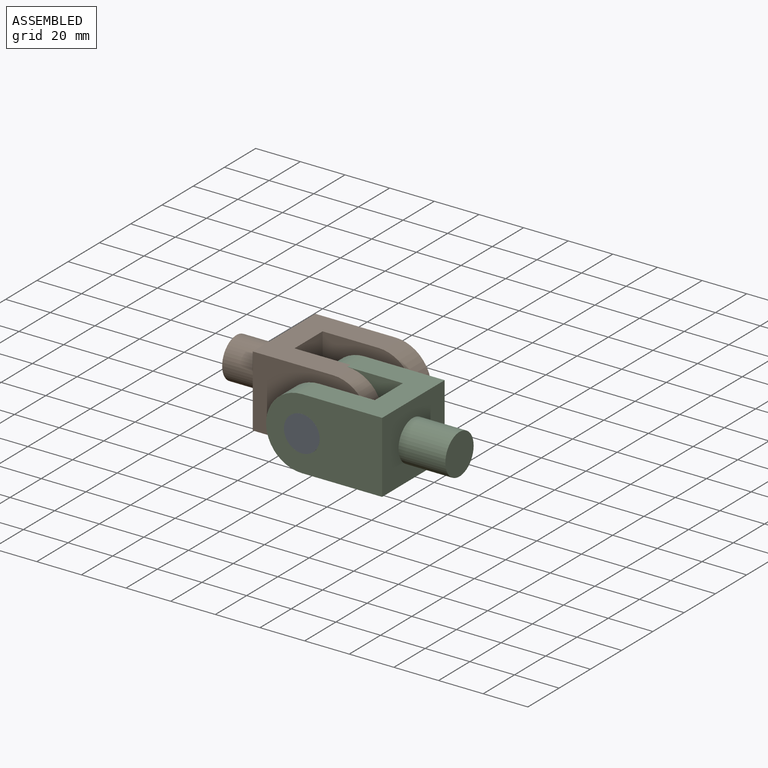
[diagram: assembled view]
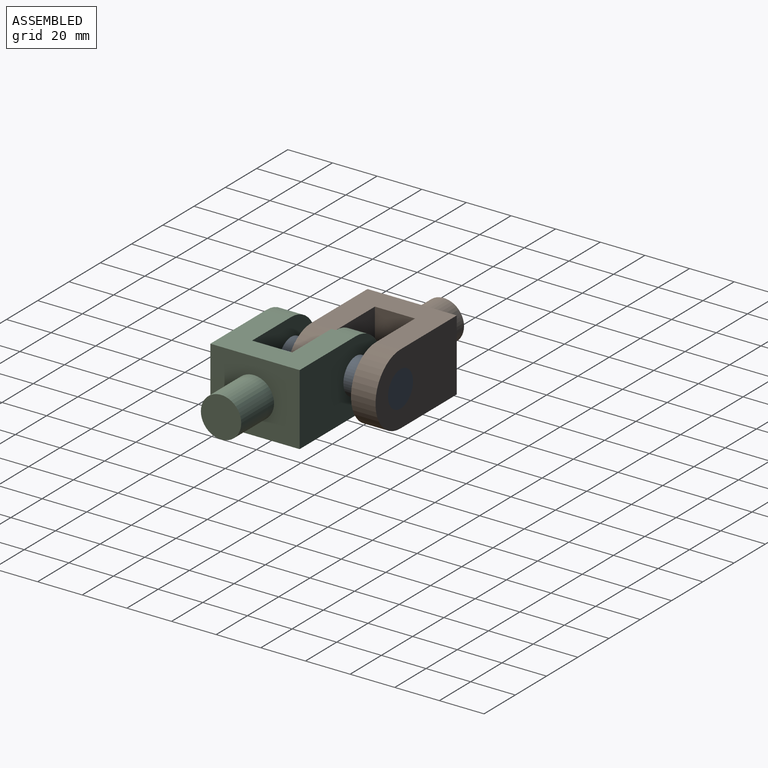
[diagram: assembled view, second angle]
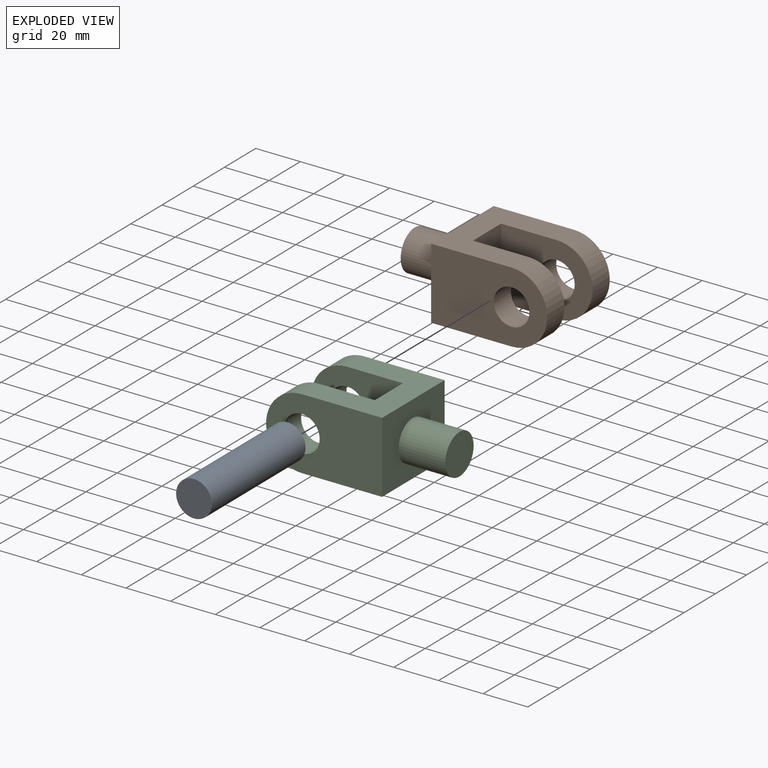
[diagram: exploded view]
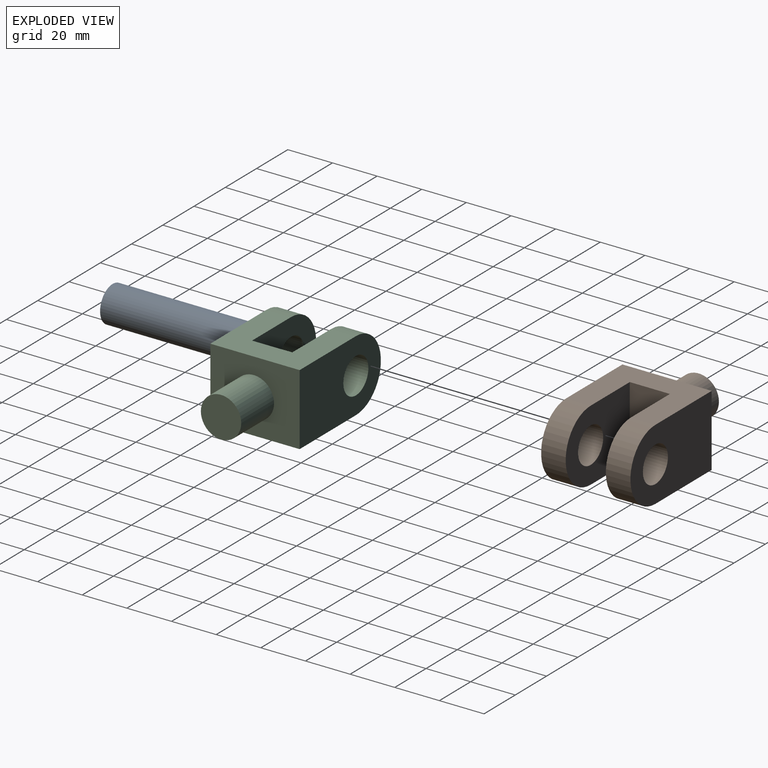
[diagram: exploded view, second angle]
ASSEMBLY  parts=3 mates=3
PART A: 3 faces, bbox 16x60x16 mm
  f0: cylinder r=8mm len=60mm, axis (0,1,0), area 3015.9mm2, adj f1,f2
  f1: plane 16x16mm, normal (0,-1,0), area 201.1mm2, adj f0
  f2: plane 16x16mm, normal (0,1,0), area 201.1mm2, adj f0
PART B: 14 faces, bbox 73x40x32 mm
  f0: plane 41x32mm, normal (0,-1,0), area 1001.1mm2, adj f1,f6,f7,f9,f13
  f1: plane 32x18mm, normal (-1,0,0), area 576mm2, adj f0,f2,f6,f7
  f2: plane 41x32mm, normal (0,1,0), area 1001.1mm2, adj f1,f6,f7,f8,f12
  f3: plane 52x32mm, normal (0,-1,0), area 1353.1mm2, adj f4,f6,f7,f8,f12
  f4: plane 40x32mm, normal (1,0,0), area 1023.1mm2, adj f3,f5,f6,f7,f10
  f5: plane 52x32mm, normal (0,1,0), area 1353.1mm2, adj f4,f6,f7,f9,f13
  f6: plane 40x36mm, normal (0,0,1), area 990mm2, adj f0,f1,f2,f3,f4,f5,f8,f9
  f7: plane 40x36mm, normal (0,0,-1), area 990mm2, adj f0,f1,f2,f3,f4,f5,f8,f9
  f8: cylinder r=16mm len=32mm, axis (0,1,0), area 552.9mm2, adj f2,f3,f6,f7
  f9: cylinder r=16mm len=32mm, axis (0,1,0), area 552.9mm2, adj f0,f5,f6,f7
  f10: cylinder r=9.04mm len=21mm, axis (-1,0,0), area 1193.1mm2, adj f4,f11
  f11: plane 18.08x18.08mm, normal (1,0,0), area 256.9mm2, adj f10
  f12: cylinder r=8mm len=16mm, axis (0,1,0), area 552.9mm2, adj f2,f3
  f13: cylinder r=8mm len=16mm, axis (0,1,0), area 552.9mm2, adj f0,f5
PART C: same geometry as B
PLACE A t=(-5.86,75.21,20.03)mm
PLACE B rot(axis=(0,1,0),180deg) t=(-46.94,49.45,41.59)mm
PLACE C t=(3.06,29.45,9.59)mm
MATE revolute A.f0 <-> C.f8  axis (0,-1,0) through (-21.94,15.21,25.59)mm
MATE revolute B.f8 <-> A.f0  axis (0,1,0) through (-21.94,75.21,25.59)mm
MATE revolute A.f0 <-> A.f0  axis (0,-1,0) through (-21.94,15.21,25.59)mm
